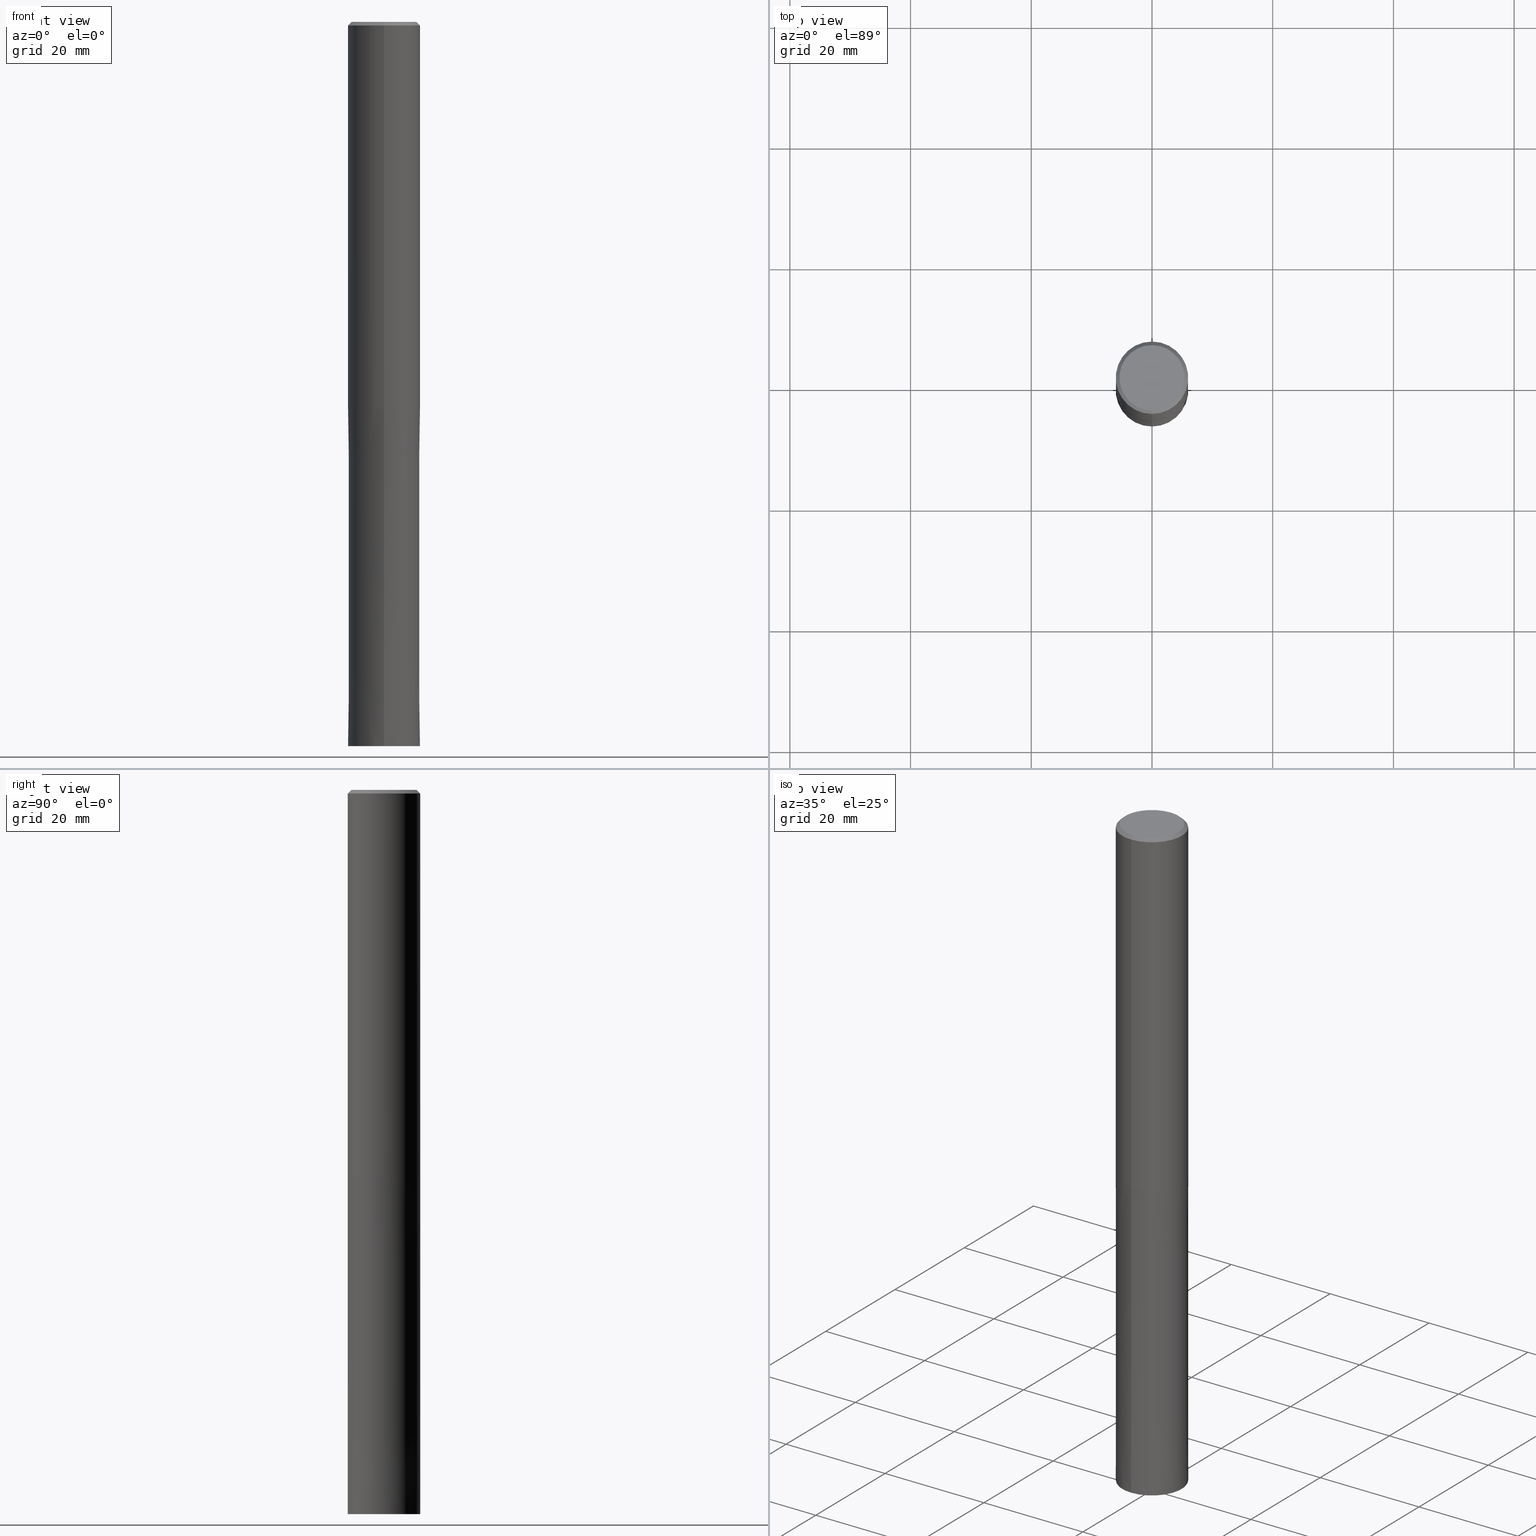
[diagram: canonical four-view strip — front | top / right | iso, engineering-drawing reading convention]
A machine part, canonical four-view strip (front | top / right | iso — engineering-drawing reading convention). The complete STEP part file that produces these views, byte-faithful:
ISO-10303-21;
HEADER;
FILE_DESCRIPTION(('no description'),'unknown implementation level');
FILE_NAME('HMS6120-5600-Huellk.stp','  ',('CIMSOURCE GmbH'),('CADClick - KiM GmbH - www.kimweb.de'),'unknown preprocess','ACIS','unknown authorization');
FILE_SCHEMA(('automotive_design'));
ENDSEC;
DATA;
#1=MECHANICAL_DESIGN_GEOMETRIC_PRESENTATION_REPRESENTATION(' ',(#14,#15,#16,#17,#18,#19,#20,#21,#22,#23,#24,#25,#26,#27,#28,#29,#30,#31,#32,#33,#34,#35,#36,#37,#38,#39,#40,#41,#42,#43,#44,#45,#46,#47,#48,#49,#50,#51,#52,#53,#54,#55,#56,#57,#58,#59,#60,#61,#62,#63,#64,#65,#66,#67,#68,#69,#70,#71,#72,#73,#74,#75,#76),#10);
#2=PRODUCT_DEFINITION_CONTEXT('',#77,'design');
#3=APPLICATION_PROTOCOL_DEFINITION('INTERNATIONAL STANDARD','automotive_design',1994,#77);
#4=PRODUCT_CATEGORY_RELATIONSHIP('NONE','NONE',#78,#79);
#5=SHAPE_DEFINITION_REPRESENTATION(#80,#81);
#6=PRODUCT_DEFINITION_CONTEXT('',#82,'design');
#7=APPLICATION_PROTOCOL_DEFINITION('INTERNATIONAL STANDARD','automotive_design',1994,#82);
#8=PRODUCT_CATEGORY_RELATIONSHIP('NONE','NONE',#83,#84);
#9=SHAPE_DEFINITION_REPRESENTATION(#85,#86);
#10= (GEOMETRIC_REPRESENTATION_CONTEXT(3)GLOBAL_UNCERTAINTY_ASSIGNED_CONTEXT((#89))GLOBAL_UNIT_ASSIGNED_CONTEXT((#91,#92,#93))REPRESENTATION_CONTEXT('NONE','WORKSPACE'));
#14=STYLED_ITEM('',(#95),#96);
#15=STYLED_ITEM('',(#97),#98);
#16=STYLED_ITEM('',(#99),#100);
#17=STYLED_ITEM('',(#101),#102);
#18=STYLED_ITEM('',(#103),#104);
#19=STYLED_ITEM('',(#105),#106);
#20=STYLED_ITEM('',(#107),#108);
#21=STYLED_ITEM('',(#109),#110);
#22=STYLED_ITEM('',(#111),#112);
#23=STYLED_ITEM('',(#113),#114);
#24=STYLED_ITEM('',(#115),#116);
#25=STYLED_ITEM('',(#117),#118);
#26=STYLED_ITEM('',(#119),#120);
#27=STYLED_ITEM('',(#121),#122);
#28=STYLED_ITEM('',(#123),#124);
#29=STYLED_ITEM('',(#125),#126);
#30=STYLED_ITEM('',(#127),#128);
#31=STYLED_ITEM('',(#129),#130);
#32=STYLED_ITEM('',(#131),#132);
#33=STYLED_ITEM('',(#133),#134);
#34=STYLED_ITEM('',(#135),#136);
#35=STYLED_ITEM('',(#137),#138);
#36=STYLED_ITEM('',(#139),#140);
#37=STYLED_ITEM('',(#141),#142);
#38=STYLED_ITEM('',(#143),#144);
#39=STYLED_ITEM('',(#145),#146);
#40=STYLED_ITEM('',(#147),#148);
#41=STYLED_ITEM('',(#149),#150);
#42=STYLED_ITEM('',(#151),#152);
#43=STYLED_ITEM('',(#153),#154);
#44=STYLED_ITEM('',(#155),#156);
#45=STYLED_ITEM('',(#157),#158);
#46=STYLED_ITEM('',(#159),#160);
#47=STYLED_ITEM('',(#161),#162);
#48=STYLED_ITEM('',(#163),#164);
#49=STYLED_ITEM('',(#165),#166);
#50=STYLED_ITEM('',(#167),#168);
#51=STYLED_ITEM('',(#169),#170);
#52=STYLED_ITEM('',(#171),#172);
#53=STYLED_ITEM('',(#173),#174);
#54=STYLED_ITEM('',(#175),#176);
#55=STYLED_ITEM('',(#177),#178);
#56=STYLED_ITEM('',(#179),#180);
#57=STYLED_ITEM('',(#181),#182);
#58=STYLED_ITEM('',(#183),#184);
#59=STYLED_ITEM('',(#185),#186);
#60=STYLED_ITEM('',(#187),#188);
#61=STYLED_ITEM('',(#189),#190);
#62=STYLED_ITEM('',(#191),#192);
#63=STYLED_ITEM('',(#193),#194);
#64=STYLED_ITEM('',(#195),#196);
#65=STYLED_ITEM('',(#197),#198);
#66=STYLED_ITEM('',(#199),#200);
#67=STYLED_ITEM('',(#201),#202);
#68=STYLED_ITEM('',(#203),#204);
#69=STYLED_ITEM('',(#205),#206);
#70=STYLED_ITEM('',(#207),#208);
#71=STYLED_ITEM('',(#209),#210);
#72=STYLED_ITEM('',(#211),#212);
#73=STYLED_ITEM('',(#213),#214);
#74=STYLED_ITEM('',(#215),#216);
#75=STYLED_ITEM('',(#217),#218);
#76=STYLED_ITEM('',(#219),#220);
#77=APPLICATION_CONTEXT(' ');
#78=PRODUCT_CATEGORY('part','NONE');
#79=PRODUCT_RELATED_PRODUCT_CATEGORY('detail',' ',(#221));
#80=PRODUCT_DEFINITION_SHAPE('NONE','NONE',#222);
#81=ADVANCED_BREP_SHAPE_REPRESENTATION('1',(#104,#223),#10);
#82=APPLICATION_CONTEXT(' ');
#83=PRODUCT_CATEGORY('part','NONE');
#84=PRODUCT_RELATED_PRODUCT_CATEGORY('detail',' ',(#224));
#85=PRODUCT_DEFINITION_SHAPE('NONE','NONE',#225);
#86=ADVANCED_BREP_SHAPE_REPRESENTATION('2',(#158,#226),#10);
#89=UNCERTAINTY_MEASURE_WITH_UNIT(LENGTH_MEASURE(1.0E-006),#91,'','');
#91= (CONVERSION_BASED_UNIT('MILLIMETRE',#229)LENGTH_UNIT()NAMED_UNIT(#232));
#92= (NAMED_UNIT(#234)PLANE_ANGLE_UNIT()SI_UNIT($,.RADIAN.));
#93= (NAMED_UNIT(#234)SOLID_ANGLE_UNIT()SI_UNIT($,.STERADIAN.));
#95=PRESENTATION_STYLE_ASSIGNMENT((#240));
#96=EDGE_CURVE('',#120,#156,#241,.T.);
#97=PRESENTATION_STYLE_ASSIGNMENT((#242));
#98=EDGE_CURVE('',#166,#188,#243,.T.);
#99=PRESENTATION_STYLE_ASSIGNMENT((#244));
#100=EDGE_CURVE('',#166,#208,#245,.T.);
#101=PRESENTATION_STYLE_ASSIGNMENT((#246));
#102=VERTEX_POINT('',#247);
#103=PRESENTATION_STYLE_ASSIGNMENT((#248));
#104=MANIFOLD_SOLID_BREP('1',#249);
#105=PRESENTATION_STYLE_ASSIGNMENT((#250));
#106=ADVANCED_FACE('',(#251,#252),#253,.T.);
#107=PRESENTATION_STYLE_ASSIGNMENT((#254));
#108=VERTEX_POINT('',#255);
#109=PRESENTATION_STYLE_ASSIGNMENT((#256));
#110=EDGE_CURVE('',#138,#194,#257,.T.);
#111=PRESENTATION_STYLE_ASSIGNMENT((#258));
#112=ADVANCED_FACE('',(#259),#260,.T.);
#113=PRESENTATION_STYLE_ASSIGNMENT((#261));
#114=VERTEX_POINT('',#262);
#115=PRESENTATION_STYLE_ASSIGNMENT((#263));
#116=ADVANCED_FACE('',(#264,#265),#266,.T.);
#117=PRESENTATION_STYLE_ASSIGNMENT((#267));
#118=VERTEX_POINT('',#268);
#119=PRESENTATION_STYLE_ASSIGNMENT((#269));
#120=VERTEX_POINT('',#270);
#121=PRESENTATION_STYLE_ASSIGNMENT((#271));
#122=EDGE_CURVE('',#178,#164,#272,.T.);
#123=PRESENTATION_STYLE_ASSIGNMENT((#273));
#124=VERTEX_POINT('',#274);
#125=PRESENTATION_STYLE_ASSIGNMENT((#275));
#126=ADVANCED_FACE('',(#276),#277,.T.);
#127=PRESENTATION_STYLE_ASSIGNMENT((#278));
#128=ADVANCED_FACE('',(#279),#280,.T.);
#129=PRESENTATION_STYLE_ASSIGNMENT((#281));
#130=EDGE_CURVE('',#136,#152,#282,.T.);
#131=PRESENTATION_STYLE_ASSIGNMENT((#283));
#132=ADVANCED_FACE('',(#284),#285,.T.);
#133=PRESENTATION_STYLE_ASSIGNMENT((#286));
#134=EDGE_CURVE('',#194,#178,#287,.T.);
#135=PRESENTATION_STYLE_ASSIGNMENT((#288));
#136=VERTEX_POINT('',#289);
#137=PRESENTATION_STYLE_ASSIGNMENT((#290));
#138=VERTEX_POINT('',#291);
#139=PRESENTATION_STYLE_ASSIGNMENT((#292));
#140=ADVANCED_FACE('',(#293,#294),#295,.T.);
#141=PRESENTATION_STYLE_ASSIGNMENT((#296));
#142=EDGE_CURVE('',#188,#124,#297,.T.);
#143=PRESENTATION_STYLE_ASSIGNMENT((#298));
#144=EDGE_CURVE('',#102,#156,#299,.T.);
#145=PRESENTATION_STYLE_ASSIGNMENT((#300));
#146=ADVANCED_FACE('',(#301),#302,.T.);
#147=PRESENTATION_STYLE_ASSIGNMENT((#303));
#148=VERTEX_POINT('',#304);
#149=PRESENTATION_STYLE_ASSIGNMENT((#305));
#150=EDGE_CURVE('',#168,#114,#306,.T.);
#151=PRESENTATION_STYLE_ASSIGNMENT((#307));
#152=VERTEX_POINT('',#308);
#153=PRESENTATION_STYLE_ASSIGNMENT((#309));
#154=EDGE_CURVE('',#114,#168,#310,.T.);
#155=PRESENTATION_STYLE_ASSIGNMENT((#311));
#156=VERTEX_POINT('',#312);
#157=PRESENTATION_STYLE_ASSIGNMENT((#313));
#158=MANIFOLD_SOLID_BREP('2',#314);
#159=PRESENTATION_STYLE_ASSIGNMENT((#315));
#160=EDGE_CURVE('',#164,#178,#316,.T.);
#161=PRESENTATION_STYLE_ASSIGNMENT((#317));
#162=ADVANCED_FACE('',(#318),#319,.T.);
#163=PRESENTATION_STYLE_ASSIGNMENT((#320));
#164=VERTEX_POINT('',#321);
#165=PRESENTATION_STYLE_ASSIGNMENT((#322));
#166=VERTEX_POINT('',#323);
#167=PRESENTATION_STYLE_ASSIGNMENT((#324));
#168=VERTEX_POINT('',#325);
#169=PRESENTATION_STYLE_ASSIGNMENT((#326));
#170=EDGE_CURVE('',#152,#136,#327,.T.);
#171=PRESENTATION_STYLE_ASSIGNMENT((#328));
#172=EDGE_CURVE('',#108,#148,#329,.T.);
#173=PRESENTATION_STYLE_ASSIGNMENT((#330));
#174=EDGE_CURVE('',#102,#118,#331,.T.);
#175=PRESENTATION_STYLE_ASSIGNMENT((#332));
#176=EDGE_CURVE('',#208,#166,#333,.T.);
#177=PRESENTATION_STYLE_ASSIGNMENT((#334));
#178=VERTEX_POINT('',#335);
#179=PRESENTATION_STYLE_ASSIGNMENT((#336));
#180=ADVANCED_FACE('',(#337),#338,.F.);
#181=PRESENTATION_STYLE_ASSIGNMENT((#339));
#182=EDGE_CURVE('',#118,#120,#340,.T.);
#183=PRESENTATION_STYLE_ASSIGNMENT((#341));
#184=EDGE_CURVE('',#164,#138,#342,.T.);
#185=PRESENTATION_STYLE_ASSIGNMENT((#343));
#186=ADVANCED_FACE('',(#344),#345,.T.);
#187=PRESENTATION_STYLE_ASSIGNMENT((#346));
#188=VERTEX_POINT('',#347);
#189=PRESENTATION_STYLE_ASSIGNMENT((#348));
#190=EDGE_CURVE('',#152,#114,#349,.T.);
#191=PRESENTATION_STYLE_ASSIGNMENT((#350));
#192=EDGE_CURVE('',#124,#208,#351,.T.);
#193=PRESENTATION_STYLE_ASSIGNMENT((#352));
#194=VERTEX_POINT('',#353);
#195=PRESENTATION_STYLE_ASSIGNMENT((#354));
#196=ADVANCED_FACE('',(#355),#356,.T.);
#197=PRESENTATION_STYLE_ASSIGNMENT((#357));
#198=EDGE_CURVE('',#178,#108,#358,.T.);
#199=PRESENTATION_STYLE_ASSIGNMENT((#359));
#200=EDGE_CURVE('',#120,#118,#360,.T.);
#201=PRESENTATION_STYLE_ASSIGNMENT((#361));
#202=ADVANCED_FACE('',(#362),#363,.T.);
#203=PRESENTATION_STYLE_ASSIGNMENT((#364));
#204=ADVANCED_FACE('',(#365),#366,.F.);
#205=PRESENTATION_STYLE_ASSIGNMENT((#367));
#206=EDGE_CURVE('',#168,#136,#368,.T.);
#207=PRESENTATION_STYLE_ASSIGNMENT((#369));
#208=VERTEX_POINT('',#370);
#209=PRESENTATION_STYLE_ASSIGNMENT((#371));
#210=EDGE_CURVE('',#148,#164,#372,.T.);
#211=PRESENTATION_STYLE_ASSIGNMENT((#373));
#212=EDGE_CURVE('',#148,#108,#374,.T.);
#213=PRESENTATION_STYLE_ASSIGNMENT((#375));
#214=EDGE_CURVE('',#124,#188,#376,.T.);
#215=PRESENTATION_STYLE_ASSIGNMENT((#377));
#216=ADVANCED_FACE('',(#378),#379,.T.);
#217=PRESENTATION_STYLE_ASSIGNMENT((#380));
#218=EDGE_CURVE('',#194,#138,#381,.T.);
#219=PRESENTATION_STYLE_ASSIGNMENT((#382));
#220=EDGE_CURVE('',#156,#102,#383,.T.);
#221=PRODUCT('1','1','PART-1-DESC',(#384));
#222=PRODUCT_DEFINITION('NONE','NONE',#385,#2);
#223=AXIS2_PLACEMENT_3D('',#386,#387,#388);
#224=PRODUCT('2','2','PART-2-DESC',(#389));
#225=PRODUCT_DEFINITION('NONE','NONE',#390,#6);
#226=AXIS2_PLACEMENT_3D('',#391,#392,#393);
#229=LENGTH_MEASURE_WITH_UNIT(LENGTH_MEASURE(1.0),#394);
#232=DIMENSIONAL_EXPONENTS(1.0,0.0,0.0,0.0,0.0,0.0,0.0);
#234=DIMENSIONAL_EXPONENTS(0.0,0.0,0.0,0.0,0.0,0.0,0.0);
#240=CURVE_STYLE('',#395,POSITIVE_LENGTH_MEASURE(1.0E-006),#396);
#241=LINE('',#397,#398);
#242=CURVE_STYLE('',#399,POSITIVE_LENGTH_MEASURE(1.0E-006),#400);
#243=LINE('',#401,#402);
#244=CURVE_STYLE('',#403,POSITIVE_LENGTH_MEASURE(1.0E-006),#404);
#245=CIRCLE('',#405,6.0);
#246=POINT_STYLE(' ',#406,POSITIVE_LENGTH_MEASURE(1.0E-006),#407);
#247=CARTESIAN_POINT('',(0.0,2.7,-64.0));
#248=SURFACE_STYLE_USAGE(.BOTH.,#408);
#249=CLOSED_SHELL('',(#162,#186,#132,#116,#216,#128,#126,#202,#196));
#250=SURFACE_STYLE_USAGE(.BOTH.,#409);
#251=FACE_OUTER_BOUND('',#410,.T.);
#252=FACE_BOUND('',#411,.T.);
#253=PLANE('',#412);
#254=POINT_STYLE(' ',#413,POSITIVE_LENGTH_MEASURE(1.0E-006),#414);
#255=CARTESIAN_POINT('',(0.0,6.0,-64.0));
#256=CURVE_STYLE('',#415,POSITIVE_LENGTH_MEASURE(1.0E-006),#416);
#257=CIRCLE('',#417,5.4);
#258=SURFACE_STYLE_USAGE(.BOTH.,#418);
#259=FACE_OUTER_BOUND('',#419,.T.);
#260=CONICAL_SURFACE('',#420,5.99995,1.78571428570823E-006);
#261=POINT_STYLE(' ',#421,POSITIVE_LENGTH_MEASURE(1.0E-006),#422);
#262=CARTESIAN_POINT('',(0.0,2.7,-119.76));
#263=SURFACE_STYLE_USAGE(.BOTH.,#423);
#264=FACE_OUTER_BOUND('',#424,.T.);
#265=FACE_BOUND('',#425,.T.);
#266=PLANE('',#426);
#267=POINT_STYLE(' ',#427,POSITIVE_LENGTH_MEASURE(1.0E-006),#428);
#268=CARTESIAN_POINT('',(0.0,2.7,-120.0));
#269=POINT_STYLE(' ',#429,POSITIVE_LENGTH_MEASURE(1.0E-006),#430);
#270=CARTESIAN_POINT('',(3.30643715532042E-016,-2.7,-120.0));
#271=CURVE_STYLE('',#431,POSITIVE_LENGTH_MEASURE(1.0E-006),#432);
#272=CIRCLE('',#433,6.0);
#273=POINT_STYLE(' ',#434,POSITIVE_LENGTH_MEASURE(1.0E-006),#435);
#274=CARTESIAN_POINT('',(0.0,5.9999,-64.0));
#275=SURFACE_STYLE_USAGE(.BOTH.,#436);
#276=FACE_OUTER_BOUND('',#437,.T.);
#277=CYLINDRICAL_SURFACE('',#438,6.0);
#278=SURFACE_STYLE_USAGE(.BOTH.,#439);
#279=FACE_OUTER_BOUND('',#440,.T.);
#280=CONICAL_SURFACE('',#441,5.7,0.785398163397447);
#281=CURVE_STYLE('',#442,POSITIVE_LENGTH_MEASURE(1.0E-006),#443);
#282=CIRCLE('',#444,2.7);
#283=SURFACE_STYLE_USAGE(.BOTH.,#445);
#284=FACE_OUTER_BOUND('',#446,.T.);
#285=CONICAL_SURFACE('',#447,5.7,0.785398163397447);
#286=CURVE_STYLE('',#448,POSITIVE_LENGTH_MEASURE(1.0E-006),#449);
#287=LINE('',#450,#451);
#288=POINT_STYLE(' ',#452,POSITIVE_LENGTH_MEASURE(1.0E-006),#453);
#289=CARTESIAN_POINT('',(3.30643715532042E-016,-2.7,-64.0));
#290=POINT_STYLE(' ',#454,POSITIVE_LENGTH_MEASURE(1.0E-006),#455);
#291=CARTESIAN_POINT('',(6.61287431064084E-016,-5.4,0.0));
#292=SURFACE_STYLE_USAGE(.BOTH.,#456);
#293=FACE_OUTER_BOUND('',#457,.T.);
#294=FACE_BOUND('',#458,.T.);
#295=PLANE('',#459);
#296=CURVE_STYLE('',#460,POSITIVE_LENGTH_MEASURE(1.0E-006),#461);
#297=CIRCLE('',#462,5.9999);
#298=CURVE_STYLE('',#463,POSITIVE_LENGTH_MEASURE(1.0E-006),#464);
#299=CIRCLE('',#465,2.7);
#300=SURFACE_STYLE_USAGE(.BOTH.,#466);
#301=FACE_OUTER_BOUND('',#467,.T.);
#302=CONICAL_SURFACE('',#468,5.99995,1.78571428570823E-006);
#303=POINT_STYLE(' ',#469,POSITIVE_LENGTH_MEASURE(1.0E-006),#470);
#304=CARTESIAN_POINT('',(7.34763812293426E-016,-6.0,-64.0));
#305=CURVE_STYLE('',#471,POSITIVE_LENGTH_MEASURE(1.0E-006),#472);
#306=CIRCLE('',#473,2.7);
#307=POINT_STYLE(' ',#474,POSITIVE_LENGTH_MEASURE(1.0E-006),#475);
#308=CARTESIAN_POINT('',(0.0,2.7,-64.0));
#309=CURVE_STYLE('',#476,POSITIVE_LENGTH_MEASURE(1.0E-006),#477);
#310=CIRCLE('',#478,2.7);
#311=POINT_STYLE(' ',#479,POSITIVE_LENGTH_MEASURE(1.0E-006),#480);
#312=CARTESIAN_POINT('',(3.30643715532042E-016,-2.7,-64.0));
#313=SURFACE_STYLE_USAGE(.BOTH.,#481);
#314=CLOSED_SHELL('',(#180,#112,#140,#146,#106,#204));
#315=CURVE_STYLE('',#482,POSITIVE_LENGTH_MEASURE(1.0E-006),#483);
#316=CIRCLE('',#484,6.0);
#317=SURFACE_STYLE_USAGE(.BOTH.,#485);
#318=FACE_OUTER_BOUND('',#486,.T.);
#319=CYLINDRICAL_SURFACE('',#487,2.7);
#320=POINT_STYLE(' ',#488,POSITIVE_LENGTH_MEASURE(1.0E-006),#489);
#321=CARTESIAN_POINT('',(7.34763812293426E-016,-6.0,-0.600000000000001));
#322=POINT_STYLE(' ',#490,POSITIVE_LENGTH_MEASURE(1.0E-006),#491);
#323=CARTESIAN_POINT('',(7.34763812293426E-016,-6.0,-120.0));
#324=POINT_STYLE(' ',#492,POSITIVE_LENGTH_MEASURE(1.0E-006),#493);
#325=CARTESIAN_POINT('',(3.30643715532042E-016,-2.7,-119.76));
#326=CURVE_STYLE('',#494,POSITIVE_LENGTH_MEASURE(1.0E-006),#495);
#327=CIRCLE('',#496,2.7);
#328=CURVE_STYLE('',#497,POSITIVE_LENGTH_MEASURE(1.0E-006),#498);
#329=CIRCLE('',#499,6.0);
#330=CURVE_STYLE('',#500,POSITIVE_LENGTH_MEASURE(1.0E-006),#501);
#331=LINE('',#502,#503);
#332=CURVE_STYLE('',#504,POSITIVE_LENGTH_MEASURE(1.0E-006),#505);
#333=CIRCLE('',#506,6.0);
#334=POINT_STYLE(' ',#507,POSITIVE_LENGTH_MEASURE(1.0E-006),#508);
#335=CARTESIAN_POINT('',(0.0,6.0,-0.600000000000001));
#336=SURFACE_STYLE_USAGE(.BOTH.,#509);
#337=FACE_OUTER_BOUND('',#510,.T.);
#338=CYLINDRICAL_SURFACE('',#511,2.7);
#339=CURVE_STYLE('',#512,POSITIVE_LENGTH_MEASURE(1.0E-006),#513);
#340=CIRCLE('',#514,2.7);
#341=CURVE_STYLE('',#515,POSITIVE_LENGTH_MEASURE(1.0E-006),#516);
#342=LINE('',#517,#518);
#343=SURFACE_STYLE_USAGE(.BOTH.,#519);
#344=FACE_OUTER_BOUND('',#520,.T.);
#345=CYLINDRICAL_SURFACE('',#521,6.0);
#346=POINT_STYLE(' ',#522,POSITIVE_LENGTH_MEASURE(1.0E-006),#523);
#347=CARTESIAN_POINT('',(7.34751566229888E-016,-5.9999,-64.0));
#348=CURVE_STYLE('',#524,POSITIVE_LENGTH_MEASURE(1.0E-006),#525);
#349=LINE('',#526,#527);
#350=CURVE_STYLE('',#528,POSITIVE_LENGTH_MEASURE(1.0E-006),#529);
#351=LINE('',#530,#531);
#352=POINT_STYLE(' ',#532,POSITIVE_LENGTH_MEASURE(1.0E-006),#533);
#353=CARTESIAN_POINT('',(0.0,5.4,0.0));
#354=SURFACE_STYLE_USAGE(.BOTH.,#534);
#355=FACE_OUTER_BOUND('',#535,.T.);
#356=PLANE('',#536);
#357=CURVE_STYLE('',#537,POSITIVE_LENGTH_MEASURE(1.0E-006),#538);
#358=LINE('',#539,#540);
#359=CURVE_STYLE('',#541,POSITIVE_LENGTH_MEASURE(1.0E-006),#542);
#360=CIRCLE('',#543,2.7);
#361=SURFACE_STYLE_USAGE(.BOTH.,#544);
#362=FACE_OUTER_BOUND('',#545,.T.);
#363=CYLINDRICAL_SURFACE('',#546,2.7);
#364=SURFACE_STYLE_USAGE(.BOTH.,#547);
#365=FACE_OUTER_BOUND('',#548,.T.);
#366=CYLINDRICAL_SURFACE('',#549,2.7);
#367=CURVE_STYLE('',#550,POSITIVE_LENGTH_MEASURE(1.0E-006),#551);
#368=LINE('',#552,#553);
#369=POINT_STYLE(' ',#554,POSITIVE_LENGTH_MEASURE(1.0E-006),#555);
#370=CARTESIAN_POINT('',(0.0,6.0,-120.0));
#371=CURVE_STYLE('',#556,POSITIVE_LENGTH_MEASURE(1.0E-006),#557);
#372=LINE('',#558,#559);
#373=CURVE_STYLE('',#560,POSITIVE_LENGTH_MEASURE(1.0E-006),#561);
#374=CIRCLE('',#562,6.0);
#375=CURVE_STYLE('',#563,POSITIVE_LENGTH_MEASURE(1.0E-006),#564);
#376=CIRCLE('',#565,5.9999);
#377=SURFACE_STYLE_USAGE(.BOTH.,#566);
#378=FACE_OUTER_BOUND('',#567,.T.);
#379=PLANE('',#568);
#380=CURVE_STYLE('',#569,POSITIVE_LENGTH_MEASURE(1.0E-006),#570);
#381=CIRCLE('',#571,5.4);
#382=CURVE_STYLE('',#572,POSITIVE_LENGTH_MEASURE(1.0E-006),#573);
#383=CIRCLE('',#574,2.7);
#384=PRODUCT_CONTEXT('',#77,'mechanical');
#385=PRODUCT_DEFINITION_FORMATION_WITH_SPECIFIED_SOURCE(' ','NONE',#221,.NOT_KNOWN.);
#386=CARTESIAN_POINT('',(0.0,0.0,0.0));
#387=DIRECTION('',(0.0,0.0,1.0));
#388=DIRECTION('',(1.0,0.0,0.0));
#389=PRODUCT_CONTEXT('',#82,'mechanical');
#390=PRODUCT_DEFINITION_FORMATION_WITH_SPECIFIED_SOURCE(' ','NONE',#224,.NOT_KNOWN.);
#391=CARTESIAN_POINT('',(0.0,0.0,0.0));
#392=DIRECTION('',(0.0,0.0,1.0));
#393=DIRECTION('',(1.0,0.0,0.0));
#394= (NAMED_UNIT(#232)LENGTH_UNIT()SI_UNIT(.MILLI.,.METRE.));
#395=DRAUGHTING_PRE_DEFINED_CURVE_FONT('continuous');
#396=COLOUR_RGB('',0.800000011920929,0.800000011920929,0.800000011920929);
#397=CARTESIAN_POINT('',(3.30643715532042E-016,-2.7,-92.0));
#398=VECTOR('',#576,1.0);
#399=DRAUGHTING_PRE_DEFINED_CURVE_FONT('continuous');
#400=COLOUR_RGB('',0.800000011920929,0.800000011920929,0.800000011920929);
#401=CARTESIAN_POINT('',(7.34757689261657E-016,-5.99995,-92.0));
#402=VECTOR('',#577,1.0);
#403=DRAUGHTING_PRE_DEFINED_CURVE_FONT('continuous');
#404=COLOUR_RGB('',0.800000011920929,0.800000011920929,0.800000011920929);
#405=AXIS2_PLACEMENT_3D('',#578,#579,#580);
#406=PRE_DEFINED_MARKER('');
#407=COLOUR_RGB('',0.800000011920929,0.800000011920929,0.800000011920929);
#408=SURFACE_SIDE_STYLE('',(#581));
#409=SURFACE_SIDE_STYLE('',(#582));
#410=EDGE_LOOP('',(#583,#584));
#411=EDGE_LOOP('',(#585,#586));
#412=AXIS2_PLACEMENT_3D('',#587,#588,#589);
#413=PRE_DEFINED_MARKER('');
#414=COLOUR_RGB('',0.498039215803146,0.498039215803146,0.498039215803146);
#415=DRAUGHTING_PRE_DEFINED_CURVE_FONT('continuous');
#416=COLOUR_RGB('',0.498039215803146,0.498039215803146,0.498039215803146);
#417=AXIS2_PLACEMENT_3D('',#590,#591,#592);
#418=SURFACE_SIDE_STYLE('',(#593));
#419=EDGE_LOOP('',(#594,#595,#596,#597));
#420=AXIS2_PLACEMENT_3D('',#598,#599,#600);
#421=PRE_DEFINED_MARKER('');
#422=COLOUR_RGB('',0.498039215803146,0.498039215803146,0.498039215803146);
#423=SURFACE_SIDE_STYLE('',(#601));
#424=EDGE_LOOP('',(#602,#603));
#425=EDGE_LOOP('',(#604,#605));
#426=AXIS2_PLACEMENT_3D('',#606,#607,#608);
#427=PRE_DEFINED_MARKER('');
#428=COLOUR_RGB('',0.800000011920929,0.800000011920929,0.800000011920929);
#429=PRE_DEFINED_MARKER('');
#430=COLOUR_RGB('',0.800000011920929,0.800000011920929,0.800000011920929);
#431=DRAUGHTING_PRE_DEFINED_CURVE_FONT('continuous');
#432=COLOUR_RGB('',0.498039215803146,0.498039215803146,0.498039215803146);
#433=AXIS2_PLACEMENT_3D('',#609,#610,#611);
#434=PRE_DEFINED_MARKER('');
#435=COLOUR_RGB('',0.800000011920929,0.800000011920929,0.800000011920929);
#436=SURFACE_SIDE_STYLE('',(#612));
#437=EDGE_LOOP('',(#613,#614,#615,#616));
#438=AXIS2_PLACEMENT_3D('',#617,#618,#619);
#439=SURFACE_SIDE_STYLE('',(#620));
#440=EDGE_LOOP('',(#621,#622,#623,#624));
#441=AXIS2_PLACEMENT_3D('',#625,#626,#627);
#442=DRAUGHTING_PRE_DEFINED_CURVE_FONT('continuous');
#443=COLOUR_RGB('',0.498039215803146,0.498039215803146,0.498039215803146);
#444=AXIS2_PLACEMENT_3D('',#628,#629,#630);
#445=SURFACE_SIDE_STYLE('',(#631));
#446=EDGE_LOOP('',(#632,#633,#634,#635));
#447=AXIS2_PLACEMENT_3D('',#636,#637,#638);
#448=DRAUGHTING_PRE_DEFINED_CURVE_FONT('continuous');
#449=COLOUR_RGB('',0.498039215803146,0.498039215803146,0.498039215803146);
#450=CARTESIAN_POINT('',(-6.98025621678755E-016,5.7,-0.300000000000004));
#451=VECTOR('',#639,1.0);
#452=PRE_DEFINED_MARKER('');
#453=COLOUR_RGB('',0.498039215803146,0.498039215803146,0.498039215803146);
#454=PRE_DEFINED_MARKER('');
#455=COLOUR_RGB('',0.498039215803146,0.498039215803146,0.498039215803146);
#456=SURFACE_SIDE_STYLE('',(#640));
#457=EDGE_LOOP('',(#641,#642));
#458=EDGE_LOOP('',(#643,#644));
#459=AXIS2_PLACEMENT_3D('',#645,#646,#647);
#460=DRAUGHTING_PRE_DEFINED_CURVE_FONT('continuous');
#461=COLOUR_RGB('',0.800000011920929,0.800000011920929,0.800000011920929);
#462=AXIS2_PLACEMENT_3D('',#648,#649,#650);
#463=DRAUGHTING_PRE_DEFINED_CURVE_FONT('continuous');
#464=COLOUR_RGB('',0.800000011920929,0.800000011920929,0.800000011920929);
#465=AXIS2_PLACEMENT_3D('',#651,#652,#653);
#466=SURFACE_SIDE_STYLE('',(#654));
#467=EDGE_LOOP('',(#655,#656,#657,#658));
#468=AXIS2_PLACEMENT_3D('',#659,#660,#661);
#469=PRE_DEFINED_MARKER('');
#470=COLOUR_RGB('',0.498039215803146,0.498039215803146,0.498039215803146);
#471=DRAUGHTING_PRE_DEFINED_CURVE_FONT('continuous');
#472=COLOUR_RGB('',0.498039215803146,0.498039215803146,0.498039215803146);
#473=AXIS2_PLACEMENT_3D('',#662,#663,#664);
#474=PRE_DEFINED_MARKER('');
#475=COLOUR_RGB('',0.498039215803146,0.498039215803146,0.498039215803146);
#476=DRAUGHTING_PRE_DEFINED_CURVE_FONT('continuous');
#477=COLOUR_RGB('',0.498039215803146,0.498039215803146,0.498039215803146);
#478=AXIS2_PLACEMENT_3D('',#665,#666,#667);
#479=PRE_DEFINED_MARKER('');
#480=COLOUR_RGB('',0.800000011920929,0.800000011920929,0.800000011920929);
#481=SURFACE_SIDE_STYLE('',(#668));
#482=DRAUGHTING_PRE_DEFINED_CURVE_FONT('continuous');
#483=COLOUR_RGB('',0.498039215803146,0.498039215803146,0.498039215803146);
#484=AXIS2_PLACEMENT_3D('',#669,#670,#671);
#485=SURFACE_SIDE_STYLE('',(#672));
#486=EDGE_LOOP('',(#673,#674,#675,#676));
#487=AXIS2_PLACEMENT_3D('',#677,#678,#679);
#488=PRE_DEFINED_MARKER('');
#489=COLOUR_RGB('',0.498039215803146,0.498039215803146,0.498039215803146);
#490=PRE_DEFINED_MARKER('');
#491=COLOUR_RGB('',0.800000011920929,0.800000011920929,0.800000011920929);
#492=PRE_DEFINED_MARKER('');
#493=COLOUR_RGB('',0.498039215803146,0.498039215803146,0.498039215803146);
#494=DRAUGHTING_PRE_DEFINED_CURVE_FONT('continuous');
#495=COLOUR_RGB('',0.498039215803146,0.498039215803146,0.498039215803146);
#496=AXIS2_PLACEMENT_3D('',#680,#681,#682);
#497=DRAUGHTING_PRE_DEFINED_CURVE_FONT('continuous');
#498=COLOUR_RGB('',0.498039215803146,0.498039215803146,0.498039215803146);
#499=AXIS2_PLACEMENT_3D('',#683,#684,#685);
#500=DRAUGHTING_PRE_DEFINED_CURVE_FONT('continuous');
#501=COLOUR_RGB('',0.800000011920929,0.800000011920929,0.800000011920929);
#502=CARTESIAN_POINT('',(-3.30643715532042E-016,2.7,-92.0));
#503=VECTOR('',#686,1.0);
#504=DRAUGHTING_PRE_DEFINED_CURVE_FONT('continuous');
#505=COLOUR_RGB('',0.800000011920929,0.800000011920929,0.800000011920929);
#506=AXIS2_PLACEMENT_3D('',#687,#688,#689);
#507=PRE_DEFINED_MARKER('');
#508=COLOUR_RGB('',0.498039215803146,0.498039215803146,0.498039215803146);
#509=SURFACE_SIDE_STYLE('',(#690));
#510=EDGE_LOOP('',(#691,#692,#693,#694));
#511=AXIS2_PLACEMENT_3D('',#695,#696,#697);
#512=DRAUGHTING_PRE_DEFINED_CURVE_FONT('continuous');
#513=COLOUR_RGB('',0.800000011920929,0.800000011920929,0.800000011920929);
#514=AXIS2_PLACEMENT_3D('',#698,#699,#700);
#515=DRAUGHTING_PRE_DEFINED_CURVE_FONT('continuous');
#516=COLOUR_RGB('',0.498039215803146,0.498039215803146,0.498039215803146);
#517=CARTESIAN_POINT('',(6.98025621678755E-016,-5.7,-0.300000000000004));
#518=VECTOR('',#701,1.0);
#519=SURFACE_SIDE_STYLE('',(#702));
#520=EDGE_LOOP('',(#703,#704,#705,#706));
#521=AXIS2_PLACEMENT_3D('',#707,#708,#709);
#522=PRE_DEFINED_MARKER('');
#523=COLOUR_RGB('',0.800000011920929,0.800000011920929,0.800000011920929);
#524=DRAUGHTING_PRE_DEFINED_CURVE_FONT('continuous');
#525=COLOUR_RGB('',0.498039215803146,0.498039215803146,0.498039215803146);
#526=CARTESIAN_POINT('',(-3.30643715532042E-016,2.7,-91.88));
#527=VECTOR('',#710,1.0);
#528=DRAUGHTING_PRE_DEFINED_CURVE_FONT('continuous');
#529=COLOUR_RGB('',0.800000011920929,0.800000011920929,0.800000011920929);
#530=CARTESIAN_POINT('',(-7.34757689261658E-016,5.99995,-92.0));
#531=VECTOR('',#711,1.0);
#532=PRE_DEFINED_MARKER('');
#533=COLOUR_RGB('',0.498039215803146,0.498039215803146,0.498039215803146);
#534=SURFACE_SIDE_STYLE('',(#712));
#535=EDGE_LOOP('',(#713,#714));
#536=AXIS2_PLACEMENT_3D('',#715,#716,#717);
#537=DRAUGHTING_PRE_DEFINED_CURVE_FONT('continuous');
#538=COLOUR_RGB('',0.498039215803146,0.498039215803146,0.498039215803146);
#539=CARTESIAN_POINT('',(-7.34763812293426E-016,6.0,-32.3));
#540=VECTOR('',#718,1.0);
#541=DRAUGHTING_PRE_DEFINED_CURVE_FONT('continuous');
#542=COLOUR_RGB('',0.800000011920929,0.800000011920929,0.800000011920929);
#543=AXIS2_PLACEMENT_3D('',#719,#720,#721);
#544=SURFACE_SIDE_STYLE('',(#722));
#545=EDGE_LOOP('',(#723,#724,#725,#726));
#546=AXIS2_PLACEMENT_3D('',#727,#728,#729);
#547=SURFACE_SIDE_STYLE('',(#730));
#548=EDGE_LOOP('',(#731,#732,#733,#734));
#549=AXIS2_PLACEMENT_3D('',#735,#736,#737);
#550=DRAUGHTING_PRE_DEFINED_CURVE_FONT('continuous');
#551=COLOUR_RGB('',0.498039215803146,0.498039215803146,0.498039215803146);
#552=CARTESIAN_POINT('',(3.30643715532042E-016,-2.7,-91.88));
#553=VECTOR('',#738,1.0);
#554=PRE_DEFINED_MARKER('');
#555=COLOUR_RGB('',0.800000011920929,0.800000011920929,0.800000011920929);
#556=DRAUGHTING_PRE_DEFINED_CURVE_FONT('continuous');
#557=COLOUR_RGB('',0.498039215803146,0.498039215803146,0.498039215803146);
#558=CARTESIAN_POINT('',(7.34763812293426E-016,-6.0,-32.3));
#559=VECTOR('',#739,1.0);
#560=DRAUGHTING_PRE_DEFINED_CURVE_FONT('continuous');
#561=COLOUR_RGB('',0.498039215803146,0.498039215803146,0.498039215803146);
#562=AXIS2_PLACEMENT_3D('',#740,#741,#742);
#563=DRAUGHTING_PRE_DEFINED_CURVE_FONT('continuous');
#564=COLOUR_RGB('',0.800000011920929,0.800000011920929,0.800000011920929);
#565=AXIS2_PLACEMENT_3D('',#743,#744,#745);
#566=SURFACE_SIDE_STYLE('',(#746));
#567=EDGE_LOOP('',(#747,#748));
#568=AXIS2_PLACEMENT_3D('',#749,#750,#751);
#569=DRAUGHTING_PRE_DEFINED_CURVE_FONT('continuous');
#570=COLOUR_RGB('',0.498039215803146,0.498039215803146,0.498039215803146);
#571=AXIS2_PLACEMENT_3D('',#752,#753,#754);
#572=DRAUGHTING_PRE_DEFINED_CURVE_FONT('continuous');
#573=COLOUR_RGB('',0.800000011920929,0.800000011920929,0.800000011920929);
#574=AXIS2_PLACEMENT_3D('',#755,#756,#757);
#576=DIRECTION('',(0.0,-0.0,1.0));
#577=DIRECTION('',(-2.18679706038852E-022,1.78571428570728E-006,0.999999999998406));
#578=CARTESIAN_POINT('',(0.0,0.0,-120.0));
#579=DIRECTION('',(0.0,0.0,-1.0));
#580=DIRECTION('',(0.0,1.0,0.0));
#581=SURFACE_STYLE_FILL_AREA(#758);
#582=SURFACE_STYLE_FILL_AREA(#759);
#583=ORIENTED_EDGE('',*,*,#176,.T.);
#584=ORIENTED_EDGE('',*,*,#100,.T.);
#585=ORIENTED_EDGE('',*,*,#182,.F.);
#586=ORIENTED_EDGE('',*,*,#200,.F.);
#587=CARTESIAN_POINT('',(0.0,4.3475,-120.0));
#588=DIRECTION('',(0.0,0.0,-1.0));
#589=DIRECTION('',(0.0,1.0,0.0));
#590=CARTESIAN_POINT('',(0.0,0.0,0.0));
#591=DIRECTION('',(0.0,0.0,-1.0));
#592=DIRECTION('',(0.0,1.0,0.0));
#593=SURFACE_STYLE_FILL_AREA(#760);
#594=ORIENTED_EDGE('',*,*,#192,.F.);
#595=ORIENTED_EDGE('',*,*,#214,.T.);
#596=ORIENTED_EDGE('',*,*,#98,.F.);
#597=ORIENTED_EDGE('',*,*,#176,.F.);
#598=CARTESIAN_POINT('',(0.0,0.0,-92.0));
#599=DIRECTION('',(0.0,-0.0,-1.0));
#600=DIRECTION('',(0.0,1.0,0.0));
#601=SURFACE_STYLE_FILL_AREA(#761);
#602=ORIENTED_EDGE('',*,*,#172,.T.);
#603=ORIENTED_EDGE('',*,*,#212,.T.);
#604=ORIENTED_EDGE('',*,*,#170,.F.);
#605=ORIENTED_EDGE('',*,*,#130,.F.);
#606=CARTESIAN_POINT('',(0.0,3.0,-64.0));
#607=DIRECTION('',(0.0,0.0,-1.0));
#608=DIRECTION('',(0.0,1.0,0.0));
#609=CARTESIAN_POINT('',(0.0,0.0,-0.600000000000001));
#610=DIRECTION('',(0.0,0.0,-1.0));
#611=DIRECTION('',(0.0,1.0,0.0));
#612=SURFACE_STYLE_FILL_AREA(#762);
#613=ORIENTED_EDGE('',*,*,#198,.T.);
#614=ORIENTED_EDGE('',*,*,#212,.F.);
#615=ORIENTED_EDGE('',*,*,#210,.T.);
#616=ORIENTED_EDGE('',*,*,#160,.T.);
#617=CARTESIAN_POINT('',(0.0,0.0,-32.3));
#618=DIRECTION('',(-0.0,-0.0,1.0));
#619=DIRECTION('',(0.0,1.0,0.0));
#620=SURFACE_STYLE_FILL_AREA(#763);
#621=ORIENTED_EDGE('',*,*,#134,.T.);
#622=ORIENTED_EDGE('',*,*,#160,.F.);
#623=ORIENTED_EDGE('',*,*,#184,.T.);
#624=ORIENTED_EDGE('',*,*,#110,.T.);
#625=CARTESIAN_POINT('',(0.0,0.0,-0.300000000000004));
#626=DIRECTION('',(0.0,-0.0,-1.0));
#627=DIRECTION('',(0.0,1.0,0.0));
#628=CARTESIAN_POINT('',(0.0,0.0,-64.0));
#629=DIRECTION('',(0.0,0.0,-1.0));
#630=DIRECTION('',(0.0,1.0,0.0));
#631=SURFACE_STYLE_FILL_AREA(#764);
#632=ORIENTED_EDGE('',*,*,#134,.F.);
#633=ORIENTED_EDGE('',*,*,#218,.T.);
#634=ORIENTED_EDGE('',*,*,#184,.F.);
#635=ORIENTED_EDGE('',*,*,#122,.F.);
#636=CARTESIAN_POINT('',(0.0,0.0,-0.300000000000004));
#637=DIRECTION('',(0.0,-0.0,-1.0));
#638=DIRECTION('',(0.0,1.0,0.0));
#639=DIRECTION('',(-8.65927457071934E-017,0.707106781186546,-0.707106781186549));
#640=SURFACE_STYLE_FILL_AREA(#765);
#641=ORIENTED_EDGE('',*,*,#214,.F.);
#642=ORIENTED_EDGE('',*,*,#142,.F.);
#643=ORIENTED_EDGE('',*,*,#144,.T.);
#644=ORIENTED_EDGE('',*,*,#220,.T.);
#645=CARTESIAN_POINT('',(0.0,4.34995,-64.0));
#646=DIRECTION('',(-0.0,0.0,1.0));
#647=DIRECTION('',(0.0,-1.0,0.0));
#648=CARTESIAN_POINT('',(0.0,0.0,-64.0));
#649=DIRECTION('',(0.0,0.0,-1.0));
#650=DIRECTION('',(0.0,1.0,0.0));
#651=CARTESIAN_POINT('',(0.0,0.0,-64.0));
#652=DIRECTION('',(0.0,0.0,-1.0));
#653=DIRECTION('',(0.0,1.0,0.0));
#654=SURFACE_STYLE_FILL_AREA(#766);
#655=ORIENTED_EDGE('',*,*,#192,.T.);
#656=ORIENTED_EDGE('',*,*,#100,.F.);
#657=ORIENTED_EDGE('',*,*,#98,.T.);
#658=ORIENTED_EDGE('',*,*,#142,.T.);
#659=CARTESIAN_POINT('',(0.0,0.0,-92.0));
#660=DIRECTION('',(0.0,-0.0,-1.0));
#661=DIRECTION('',(0.0,1.0,0.0));
#662=CARTESIAN_POINT('',(0.0,0.0,-119.76));
#663=DIRECTION('',(0.0,0.0,-1.0));
#664=DIRECTION('',(0.0,1.0,0.0));
#665=CARTESIAN_POINT('',(0.0,0.0,-119.76));
#666=DIRECTION('',(0.0,0.0,-1.0));
#667=DIRECTION('',(0.0,1.0,0.0));
#668=SURFACE_STYLE_FILL_AREA(#767);
#669=CARTESIAN_POINT('',(0.0,0.0,-0.600000000000001));
#670=DIRECTION('',(0.0,0.0,-1.0));
#671=DIRECTION('',(0.0,1.0,0.0));
#672=SURFACE_STYLE_FILL_AREA(#768);
#673=ORIENTED_EDGE('',*,*,#190,.F.);
#674=ORIENTED_EDGE('',*,*,#170,.T.);
#675=ORIENTED_EDGE('',*,*,#206,.F.);
#676=ORIENTED_EDGE('',*,*,#154,.F.);
#677=CARTESIAN_POINT('',(0.0,0.0,-91.88));
#678=DIRECTION('',(-0.0,-0.0,1.0));
#679=DIRECTION('',(0.0,1.0,0.0));
#680=CARTESIAN_POINT('',(0.0,0.0,-64.0));
#681=DIRECTION('',(0.0,0.0,-1.0));
#682=DIRECTION('',(0.0,1.0,0.0));
#683=CARTESIAN_POINT('',(0.0,0.0,-64.0));
#684=DIRECTION('',(0.0,0.0,-1.0));
#685=DIRECTION('',(0.0,1.0,0.0));
#686=DIRECTION('',(0.0,-0.0,-1.0));
#687=CARTESIAN_POINT('',(0.0,0.0,-120.0));
#688=DIRECTION('',(0.0,0.0,-1.0));
#689=DIRECTION('',(0.0,1.0,0.0));
#690=SURFACE_STYLE_FILL_AREA(#769);
#691=ORIENTED_EDGE('',*,*,#174,.F.);
#692=ORIENTED_EDGE('',*,*,#220,.F.);
#693=ORIENTED_EDGE('',*,*,#96,.F.);
#694=ORIENTED_EDGE('',*,*,#200,.T.);
#695=CARTESIAN_POINT('',(0.0,0.0,-92.0));
#696=DIRECTION('',(-0.0,-0.0,1.0));
#697=DIRECTION('',(0.0,1.0,0.0));
#698=CARTESIAN_POINT('',(0.0,0.0,-120.0));
#699=DIRECTION('',(0.0,0.0,-1.0));
#700=DIRECTION('',(0.0,1.0,0.0));
#701=DIRECTION('',(-8.65927457071934E-017,0.707106781186546,0.707106781186549));
#702=SURFACE_STYLE_FILL_AREA(#770);
#703=ORIENTED_EDGE('',*,*,#198,.F.);
#704=ORIENTED_EDGE('',*,*,#122,.T.);
#705=ORIENTED_EDGE('',*,*,#210,.F.);
#706=ORIENTED_EDGE('',*,*,#172,.F.);
#707=CARTESIAN_POINT('',(0.0,0.0,-32.3));
#708=DIRECTION('',(-0.0,-0.0,1.0));
#709=DIRECTION('',(0.0,1.0,0.0));
#710=DIRECTION('',(0.0,0.0,-1.0));
#711=DIRECTION('',(-2.18679706038852E-022,1.78571428570728E-006,-0.999999999998406));
#712=SURFACE_STYLE_FILL_AREA(#771);
#713=ORIENTED_EDGE('',*,*,#154,.T.);
#714=ORIENTED_EDGE('',*,*,#150,.T.);
#715=CARTESIAN_POINT('',(0.0,1.35,-119.76));
#716=DIRECTION('',(0.0,0.0,-1.0));
#717=DIRECTION('',(0.0,1.0,0.0));
#718=DIRECTION('',(0.0,0.0,-1.0));
#719=CARTESIAN_POINT('',(0.0,0.0,-120.0));
#720=DIRECTION('',(0.0,0.0,-1.0));
#721=DIRECTION('',(0.0,1.0,0.0));
#722=SURFACE_STYLE_FILL_AREA(#772);
#723=ORIENTED_EDGE('',*,*,#190,.T.);
#724=ORIENTED_EDGE('',*,*,#150,.F.);
#725=ORIENTED_EDGE('',*,*,#206,.T.);
#726=ORIENTED_EDGE('',*,*,#130,.T.);
#727=CARTESIAN_POINT('',(0.0,0.0,-91.88));
#728=DIRECTION('',(-0.0,-0.0,1.0));
#729=DIRECTION('',(0.0,1.0,0.0));
#730=SURFACE_STYLE_FILL_AREA(#773);
#731=ORIENTED_EDGE('',*,*,#174,.T.);
#732=ORIENTED_EDGE('',*,*,#182,.T.);
#733=ORIENTED_EDGE('',*,*,#96,.T.);
#734=ORIENTED_EDGE('',*,*,#144,.F.);
#735=CARTESIAN_POINT('',(0.0,0.0,-92.0));
#736=DIRECTION('',(-0.0,-0.0,1.0));
#737=DIRECTION('',(0.0,1.0,0.0));
#738=DIRECTION('',(-0.0,-0.0,1.0));
#739=DIRECTION('',(-0.0,-0.0,1.0));
#740=CARTESIAN_POINT('',(0.0,0.0,-64.0));
#741=DIRECTION('',(0.0,0.0,-1.0));
#742=DIRECTION('',(0.0,1.0,0.0));
#743=CARTESIAN_POINT('',(0.0,0.0,-64.0));
#744=DIRECTION('',(0.0,0.0,-1.0));
#745=DIRECTION('',(0.0,1.0,0.0));
#746=SURFACE_STYLE_FILL_AREA(#774);
#747=ORIENTED_EDGE('',*,*,#218,.F.);
#748=ORIENTED_EDGE('',*,*,#110,.F.);
#749=CARTESIAN_POINT('',(0.0,2.7,0.0));
#750=DIRECTION('',(-0.0,0.0,1.0));
#751=DIRECTION('',(0.0,-1.0,0.0));
#752=CARTESIAN_POINT('',(0.0,0.0,0.0));
#753=DIRECTION('',(0.0,0.0,-1.0));
#754=DIRECTION('',(0.0,1.0,0.0));
#755=CARTESIAN_POINT('',(0.0,0.0,-64.0));
#756=DIRECTION('',(0.0,0.0,-1.0));
#757=DIRECTION('',(0.0,1.0,0.0));
#758=FILL_AREA_STYLE('',(#775));
#759=FILL_AREA_STYLE('',(#776));
#760=FILL_AREA_STYLE('',(#777));
#761=FILL_AREA_STYLE('',(#778));
#762=FILL_AREA_STYLE('',(#779));
#763=FILL_AREA_STYLE('',(#780));
#764=FILL_AREA_STYLE('',(#781));
#765=FILL_AREA_STYLE('',(#782));
#766=FILL_AREA_STYLE('',(#783));
#767=FILL_AREA_STYLE('',(#784));
#768=FILL_AREA_STYLE('',(#785));
#769=FILL_AREA_STYLE('',(#786));
#770=FILL_AREA_STYLE('',(#787));
#771=FILL_AREA_STYLE('',(#788));
#772=FILL_AREA_STYLE('',(#789));
#773=FILL_AREA_STYLE('',(#790));
#774=FILL_AREA_STYLE('',(#791));
#775=FILL_AREA_STYLE_COLOUR('',#792);
#776=FILL_AREA_STYLE_COLOUR('',#793);
#777=FILL_AREA_STYLE_COLOUR('',#794);
#778=FILL_AREA_STYLE_COLOUR('',#795);
#779=FILL_AREA_STYLE_COLOUR('',#796);
#780=FILL_AREA_STYLE_COLOUR('',#797);
#781=FILL_AREA_STYLE_COLOUR('',#798);
#782=FILL_AREA_STYLE_COLOUR('',#799);
#783=FILL_AREA_STYLE_COLOUR('',#800);
#784=FILL_AREA_STYLE_COLOUR('',#801);
#785=FILL_AREA_STYLE_COLOUR('',#802);
#786=FILL_AREA_STYLE_COLOUR('',#803);
#787=FILL_AREA_STYLE_COLOUR('',#804);
#788=FILL_AREA_STYLE_COLOUR('',#805);
#789=FILL_AREA_STYLE_COLOUR('',#806);
#790=FILL_AREA_STYLE_COLOUR('',#807);
#791=FILL_AREA_STYLE_COLOUR('',#808);
#792=COLOUR_RGB('',0.498039215803146,0.498039215803146,0.498039215803146);
#793=COLOUR_RGB('',0.800000011920929,0.800000011920929,0.800000011920929);
#794=COLOUR_RGB('',0.800000011920929,0.800000011920929,0.800000011920929);
#795=COLOUR_RGB('',0.498039215803146,0.498039215803146,0.498039215803146);
#796=COLOUR_RGB('',0.498039215803146,0.498039215803146,0.498039215803146);
#797=COLOUR_RGB('',0.498039215803146,0.498039215803146,0.498039215803146);
#798=COLOUR_RGB('',0.498039215803146,0.498039215803146,0.498039215803146);
#799=COLOUR_RGB('',0.800000011920929,0.800000011920929,0.800000011920929);
#800=COLOUR_RGB('',0.800000011920929,0.800000011920929,0.800000011920929);
#801=COLOUR_RGB('',0.800000011920929,0.800000011920929,0.800000011920929);
#802=COLOUR_RGB('',0.498039215803146,0.498039215803146,0.498039215803146);
#803=COLOUR_RGB('',0.800000011920929,0.800000011920929,0.800000011920929);
#804=COLOUR_RGB('',0.498039215803146,0.498039215803146,0.498039215803146);
#805=COLOUR_RGB('',0.498039215803146,0.498039215803146,0.498039215803146);
#806=COLOUR_RGB('',0.498039215803146,0.498039215803146,0.498039215803146);
#807=COLOUR_RGB('',0.800000011920929,0.800000011920929,0.800000011920929);
#808=COLOUR_RGB('',0.498039215803146,0.498039215803146,0.498039215803146);
#809=AXIS2_PLACEMENT_3D('PCS',#810,#811,#812);
#810=CARTESIAN_POINT('',(0.0,0.0,0.0));
#811=DIRECTION('',(0.0,0.0,1.0));
#812=DIRECTION('',(1.0,0.0,0.0));
#813=AXIS2_PLACEMENT_3D('CIP',#814,#815,#816);
#814=CARTESIAN_POINT('',(0.0,0.0,-120.0));
#815=DIRECTION('',(0.0,0.0,1.0));
#816=DIRECTION('',(1.0,0.0,0.0));
#817=AXIS2_PLACEMENT_3D('CRP',#818,#819,#820);
#818=CARTESIAN_POINT('',(-6.0,0.0,-120.0));
#819=DIRECTION('',(0.0,0.0,1.0));
#820=DIRECTION('',(1.0,0.0,0.0));
#821=AXIS2_PLACEMENT_3D('MCS',#822,#823,#824);
#822=CARTESIAN_POINT('',(0.0,0.0,-64.0));
#823=DIRECTION('',(0.0,0.0,1.0));
#824=DIRECTION('',(1.0,0.0,0.0));
#825=CONSTRUCTIVE_GEOMETRY_REPRESENTATION_RELATIONSHIP('coordinate systems',$,#81,#826);
#826=CONSTRUCTIVE_GEOMETRY_REPRESENTATION('coordinate systems',(#809,#813,#817,#821),#10);
ENDSEC;
END-ISO-10303-21;
